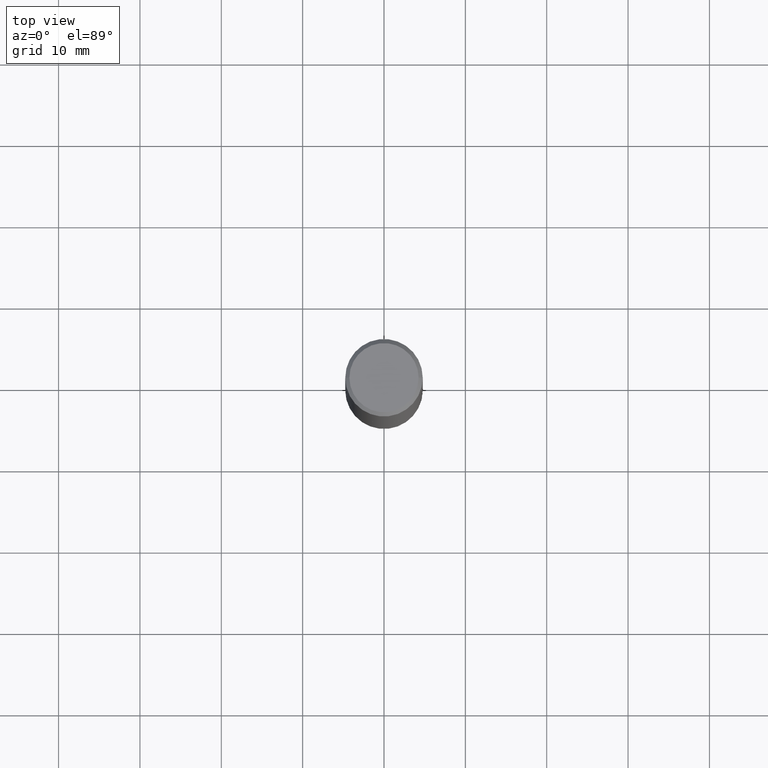
[diagram: clean part render]
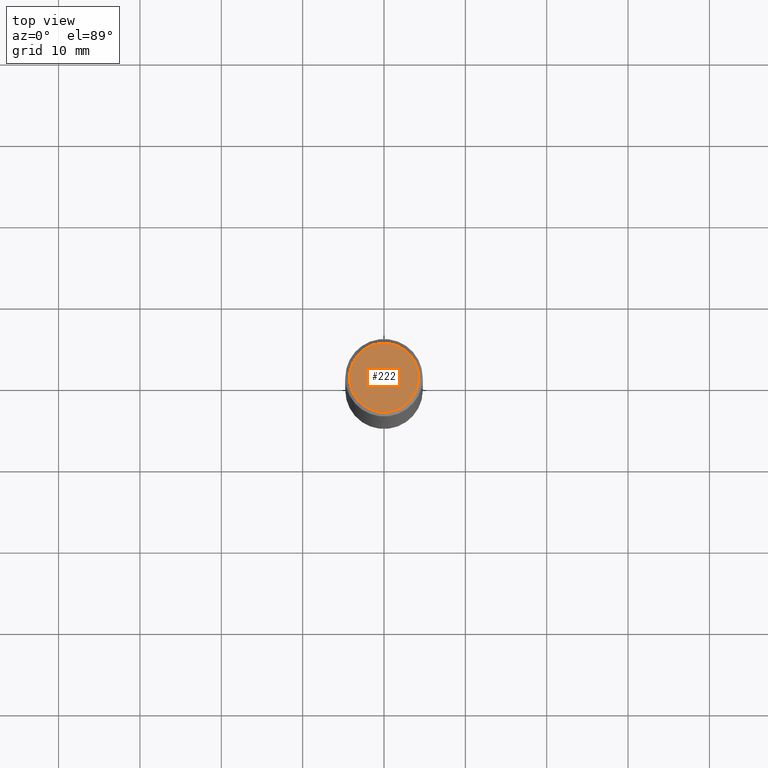
[diagram: same view with one face highlighted and labeled with its STEP entity id]
A machine part, top view. The second image highlights one B-rep face of the part: STEP entity #222.
In plain terms, the highlighted planar face has unit normal (0, -0, -1).
Its self-contained STEP definition (entity closure, byte-faithful):
#17 = AXIS2_PLACEMENT_3D ( 'NONE', #248, #219, #350 ) ;
#22 = VERTEX_POINT ( 'NONE', #91 ) ;
#41 = ORIENTED_EDGE ( 'NONE', *, *, #280, .T. ) ;
#47 = ORIENTED_EDGE ( 'NONE', *, *, #59, .T. ) ;
#54 = CIRCLE ( 'NONE', #290, 0.1675000000000000655 ) ;
#59 = EDGE_CURVE ( 'NONE', #121, #22, #289, .T. ) ;
#91 = CARTESIAN_POINT ( 'NONE',  ( -0.1675000000000000655, 1.204561061900881244E-15, -3.414809992081159176E-17 ) ) ;
#121 = VERTEX_POINT ( 'NONE', #403 ) ;
#131 = DIRECTION ( 'NONE',  ( -2.445468806185136597E-29, 3.491481338843145583E-15, 1.000000000000000000 ) ) ;
#134 = FACE_OUTER_BOUND ( 'NONE', #155, .T. ) ;
#155 = EDGE_LOOP ( 'NONE', ( #41, #47 ) ) ;
#202 = PLANE ( 'NONE',  #399 ) ;
#219 = DIRECTION ( 'NONE',  ( -2.445468806185136597E-29, 3.491481338843145583E-15, 1.000000000000000000 ) ) ;
#222 = ADVANCED_FACE ( 'NONE', ( #134 ), #202, .F. ) ;
#248 = CARTESIAN_POINT ( 'NONE',  ( 8.350811314681758556E-46, -1.192274536304357760E-31, -3.414809992080329023E-17 ) ) ;
#280 = EDGE_CURVE ( 'NONE', #22, #121, #54, .T. ) ;
#289 = CIRCLE ( 'NONE', #17, 0.1675000000000000655 ) ;
#290 = AXIS2_PLACEMENT_3D ( 'NONE', #362, #131, #416 ) ;
#328 = DIRECTION ( 'NONE',  ( -1.000000000000000000, 6.982962677686265922E-15, -4.876176775795935793E-29 ) ) ;
#350 = DIRECTION ( 'NONE',  ( 1.000000000000000000, -6.982962677686265922E-15, 4.875370901645438946E-29 ) ) ;
#355 = DIRECTION ( 'NONE',  ( 2.438088387897960049E-29, -3.491481338843145188E-15, -1.000000000000000000 ) ) ;
#362 = CARTESIAN_POINT ( 'NONE',  ( 8.350811314681758556E-46, -1.192274536304357760E-31, -3.414809992080329023E-17 ) ) ;
#383 = CARTESIAN_POINT ( 'NONE',  ( 1.169646248512449792E-15, 0.1675000000000000655, -6.018971742166287723E-16 ) ) ;
#399 = AXIS2_PLACEMENT_3D ( 'NONE', #383, #355, #328 ) ;
#403 = CARTESIAN_POINT ( 'NONE',  ( 0.1675000000000000655, -1.252653207992878880E-15, -3.414809992079482230E-17 ) ) ;
#416 = DIRECTION ( 'NONE',  ( 1.000000000000000000, -6.982962677686265922E-15, 4.875370901645438946E-29 ) ) ;